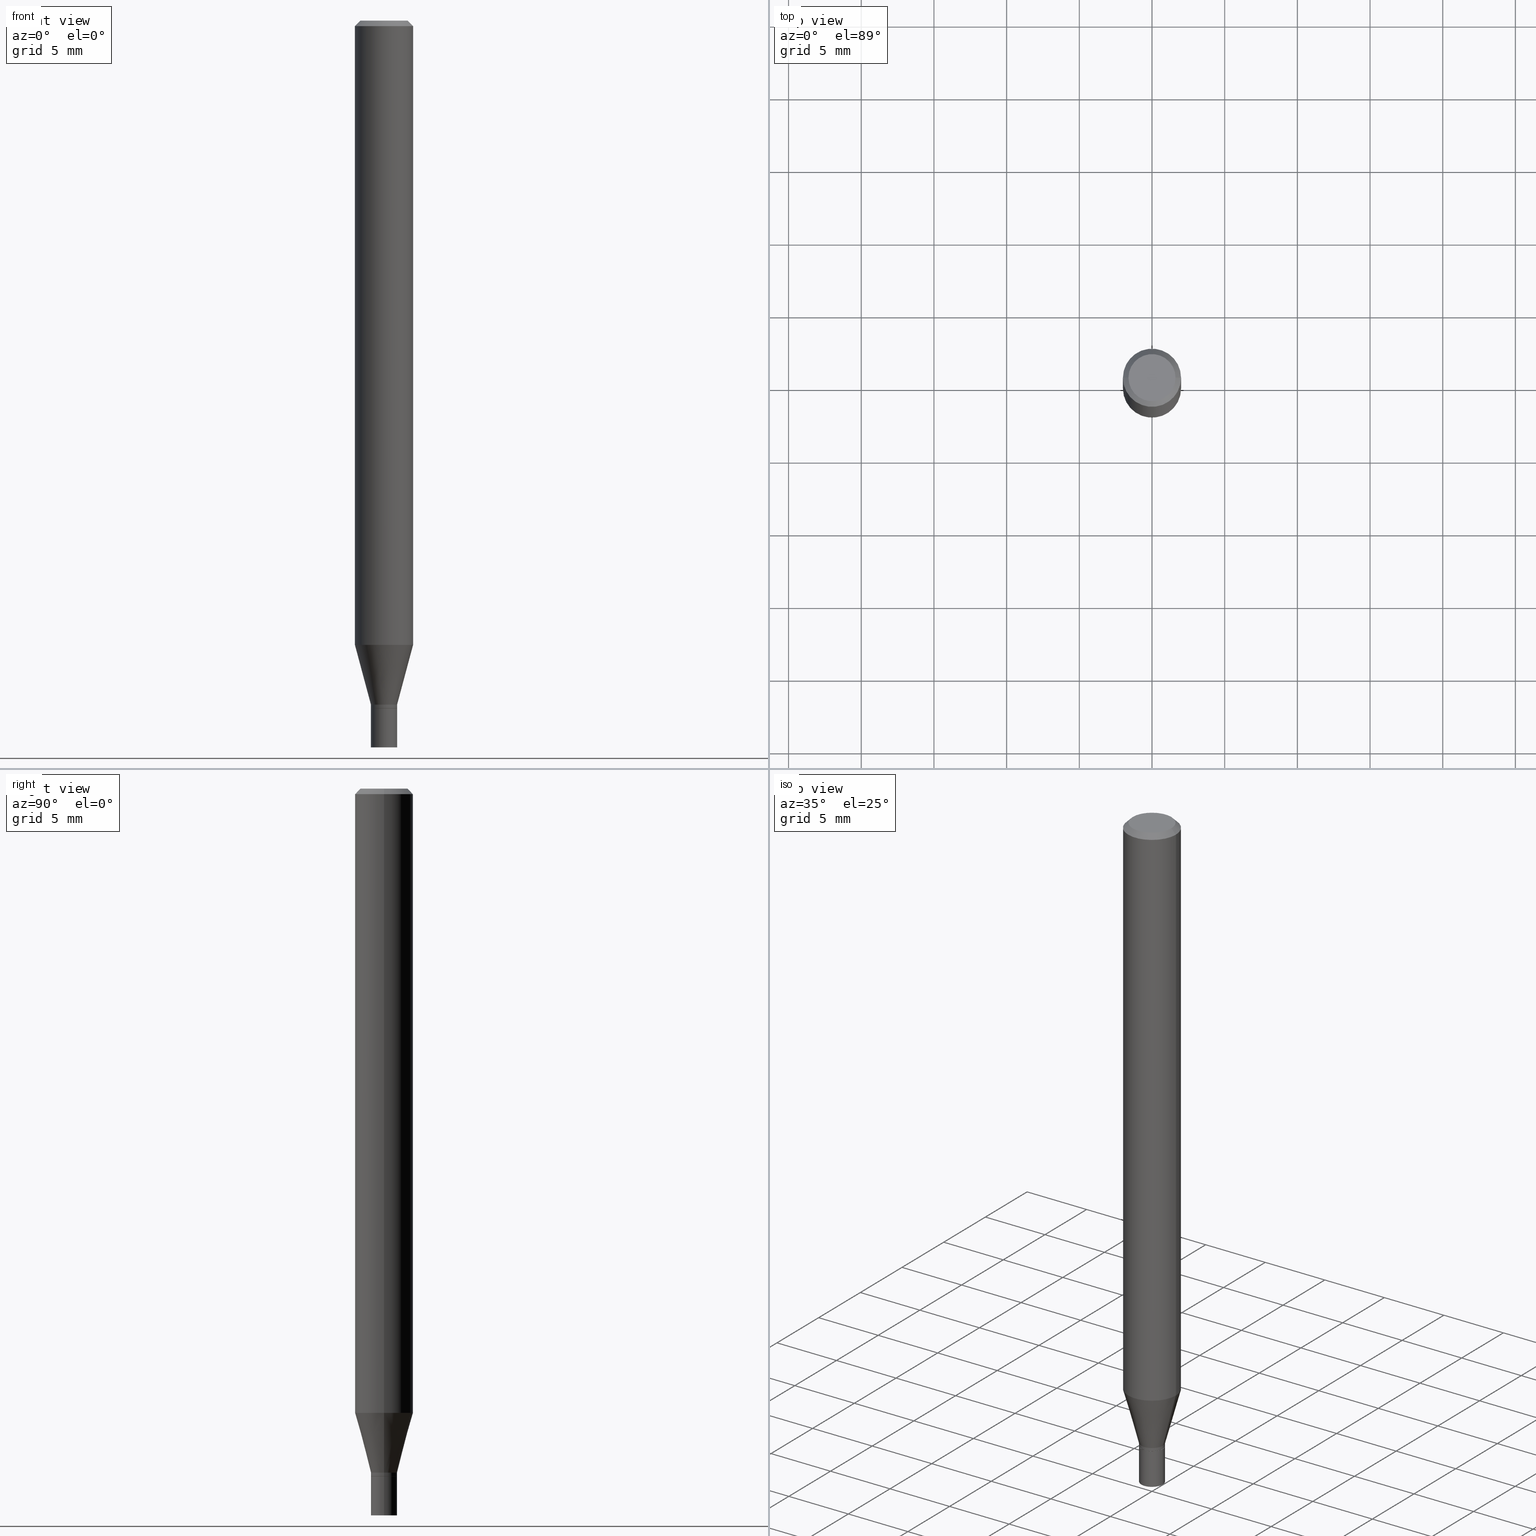
[diagram: canonical four-view strip — front | top / right | iso, engineering-drawing reading convention]
A machine part, canonical four-view strip (front | top / right | iso — engineering-drawing reading convention). The complete STEP part file that produces these views, byte-faithful:
ISO-10303-21;
HEADER;
FILE_DESCRIPTION (( 'STEP AP203' ),
    '1' );
FILE_NAME ('01869.STEP',
    '2024-03-20T02:12:16',
    ( '' ),
    ( '' ),
    'SwSTEP 2.0',
    'SolidWorks 2023',
    '' );
FILE_SCHEMA (( 'CONFIG_CONTROL_DESIGN' ));
ENDSEC;

DATA;
#1 = CARTESIAN_POINT ( 'NONE',  ( -0.03495000000000000190, -6.253501863045551363E-15, -1.862200000000000077 ) ) ;
#2 = APPROVAL ( #449, 'UNSPECIFIED' ) ;
#3 = ORIENTED_EDGE ( 'NONE', *, *, #271, .F. ) ;
#4 = CIRCLE ( 'NONE', #185, 0.07875000000000000056 ) ;
#5 = DIRECTION ( 'NONE',  ( -1.000000000000000000, 6.982962677686265922E-15, -4.876176775795935793E-29 ) ) ;
#6 = EDGE_CURVE ( 'NONE', #56, #96, #73, .T. ) ;
#7 = VERTEX_POINT ( 'NONE', #77 ) ;
#8 = CARTESIAN_POINT ( 'NONE',  ( 3.668203209277705088E-31, -5.237222008264718399E-17, -0.01499999999999999944 ) ) ;
#9 = AXIS2_PLACEMENT_3D ( 'NONE', #306, #205, #17 ) ;
#10 = AXIS2_PLACEMENT_3D ( 'NONE', #381, #208, #296 ) ;
#11 = ORIENTED_EDGE ( 'NONE', *, *, #266, .T. ) ;
#12 = ORIENTED_EDGE ( 'NONE', *, *, #173, .F. ) ;
#13 = LINE ( 'NONE', #157, #377 ) ;
#14 = APPLICATION_PROTOCOL_DEFINITION ( 'international standard', 'config_control_design', 1994, #264 ) ;
#15 = ORIENTED_EDGE ( 'NONE', *, *, #173, .T. ) ;
#16 = EDGE_CURVE ( 'NONE', #361, #343, #229, .T. ) ;
#17 = DIRECTION ( 'NONE',  ( -1.000000000000000000, 6.982962677686265922E-15, -4.876176775795935793E-29 ) ) ;
#18 = CARTESIAN_POINT ( 'NONE',  ( 0.000000000000000000, 0.000000000000000000, 0.000000000000000000 ) ) ;
#19 = LENGTH_MEASURE_WITH_UNIT ( LENGTH_MEASURE( 0.02539999999999999897 ), #89 );
#20 = AXIS2_PLACEMENT_3D ( 'NONE', #8, #119, #403 ) ;
#21 = ADVANCED_FACE ( 'NONE', ( #133 ), #337, .T. ) ;
#22 = MANIFOLD_SOLID_BREP ( 'Body-Move/Copy2[1]', #454 ) ;
#23 = CARTESIAN_POINT ( 'NONE',  ( -0.07875000000000000056, -2.418510444240986285E-15, -0.01499999999999999944 ) ) ;
#24 = ORIENTED_EDGE ( 'NONE', *, *, #107, .F. ) ;
#25 = DIRECTION ( 'NONE',  ( -2.445468806185136597E-29, 3.491481338843145583E-15, 1.000000000000000000 ) ) ;
#26 = AXIS2_PLACEMENT_3D ( 'NONE', #410, #415, #340 ) ;
#27 = PERSON_AND_ORGANIZATION_ROLE ( 'creator' ) ;
#28 = EDGE_CURVE ( 'NONE', #343, #96, #333, .T. ) ;
#29 = CARTESIAN_POINT ( 'NONE',  ( 4.553952010877962015E-29, -6.501836549193706638E-15, -1.862200000000000077 ) ) ;
#30 = DATE_AND_TIME ( #461, #223 ) ;
#31 = ORIENTED_EDGE ( 'NONE', *, *, #364, .F. ) ;
#32 = LINE ( 'NONE', #282, #441 ) ;
#33 = DIRECTION ( 'NONE',  ( -2.445468806185136597E-29, 3.491481338843145583E-15, 1.000000000000000000 ) ) ;
#34 = DIRECTION ( 'NONE',  ( -0.7071067811865656694, 7.493145998870420424E-15, 0.7071067811865294761 ) ) ;
#35 = DIRECTION ( 'NONE',  ( 1.000000000000000000, -6.982962677686266711E-15, 4.876176775795935793E-29 ) ) ;
#36 = DIRECTION ( 'NONE',  ( -2.445468806185136597E-29, 3.491481338843145583E-15, 1.000000000000000000 ) ) ;
#37 = AXIS2_PLACEMENT_3D ( 'NONE', #91, #85, #200 ) ;
#38 = ORIENTED_EDGE ( 'NONE', *, *, #6, .T. ) ;
#39 = AXIS2_PLACEMENT_3D ( 'NONE', #227, #206, #342 ) ;
#40 = ORIENTED_EDGE ( 'NONE', *, *, #349, .T. ) ;
#41 = EDGE_LOOP ( 'NONE', ( #366, #43, #188, #394 ) ) ;
#42 = ORIENTED_EDGE ( 'NONE', *, *, #75, .F. ) ;
#43 = ORIENTED_EDGE ( 'NONE', *, *, #254, .T. ) ;
#44 = ORIENTED_EDGE ( 'NONE', *, *, #189, .F. ) ;
#45 = AXIS2_PLACEMENT_3D ( 'NONE', #435, #317, #402 ) ;
#46 = AXIS2_PLACEMENT_3D ( 'NONE', #249, #95, #368 ) ;
#47 = CARTESIAN_POINT ( 'NONE',  ( -0.06375000000000000111, 4.713499807438225296E-16, -2.315107740929834566E-16 ) ) ;
#48 = EDGE_LOOP ( 'NONE', ( #288, #145, #94, #429 ) ) ;
#49 = CARTESIAN_POINT ( 'NONE',  ( 0.000000000000000000, 0.000000000000000000, 0.000000000000000000 ) ) ;
#50 = APPROVAL ( #121, 'UNSPECIFIED' ) ;
#51 = DIRECTION ( 'NONE',  ( 1.000000000000000000, -6.982962677686254089E-15, 0.000000000000000000 ) ) ;
#52 = CYLINDRICAL_SURFACE ( 'NONE', #290, 0.03544999999999992601 ) ;
#53 = VECTOR ( 'NONE', #90, 39.37007874015748143 ) ;
#54 =( NAMED_UNIT ( * ) SI_UNIT ( $, .STERADIAN. ) SOLID_ANGLE_UNIT ( ) );
#55 = EDGE_CURVE ( 'NONE', #327, #219, #273, .T. ) ;
#56 = VERTEX_POINT ( 'NONE', #197 ) ;
#57 = ORIENTED_EDGE ( 'NONE', *, *, #87, .T. ) ;
#58 = EDGE_CURVE ( 'NONE', #343, #361, #102, .T. ) ;
#59 = FACE_OUTER_BOUND ( 'NONE', #464, .T. ) ;
#60 = PERSON_AND_ORGANIZATION ( #274, #360 ) ;
#61 = PLANE ( 'NONE',  #116 ) ;
#62 = CONICAL_SURFACE ( 'NONE', #319, 0.03544999999999992601, 0.2617993877991502405 ) ;
#63 = EDGE_CURVE ( 'NONE', #330, #219, #240, .T. ) ;
#64 = PERSON_AND_ORGANIZATION_ROLE ( 'creator' ) ;
#65 = CALENDAR_DATE ( 2024, 19, 3 ) ;
#66 = ORIENTED_EDGE ( 'NONE', *, *, #458, .F. ) ;
#67 = ADVANCED_FACE ( 'NONE', ( #59 ), #137, .F. ) ;
#68 = DIRECTION ( 'NONE',  ( 0.7071067811865530128, -7.319954787623274978E-15, -0.7071067811865420216 ) ) ;
#69 = VECTOR ( 'NONE', #262, 39.37007874015748143 ) ;
#70 = DIRECTION ( 'NONE',  ( -2.445468806185136877E-29, 3.491481338843145188E-15, 1.000000000000000000 ) ) ;
#71 = FACE_OUTER_BOUND ( 'NONE', #256, .T. ) ;
#72 = ADVANCED_FACE ( 'NONE', ( #379 ), #169, .T. ) ;
#73 = CIRCLE ( 'NONE', #45, 0.03544999999999992601 ) ;
#74 = AXIS2_PLACEMENT_3D ( 'NONE', #111, #98, #356 ) ;
#75 = EDGE_CURVE ( 'NONE', #363, #186, #284, .T. ) ;
#76 = DIRECTION ( 'NONE',  ( 1.000000000000000000, 0.000000000000000000, 0.000000000000000000 ) ) ;
#77 = CARTESIAN_POINT ( 'NONE',  ( -0.03545000000000000234, -6.435521382526263788E-15, -1.862200000000000077 ) ) ;
#78 = CARTESIAN_POINT ( 'NONE',  ( 0.03545000000000000234, -6.749382576117683733E-15, -1.862200000000000077 ) ) ;
#79 = DIRECTION ( 'NONE',  ( -2.445468806185136597E-29, 3.491481338843145583E-15, 1.000000000000000000 ) ) ;
#80 = DIRECTION ( 'NONE',  ( 1.000000000000000000, -6.982962677686269077E-15, 0.000000000000000000 ) ) ;
#81 = ORIENTED_EDGE ( 'NONE', *, *, #364, .T. ) ;
#82 = DIRECTION ( 'NONE',  ( -2.445468806185136877E-29, 3.491481338843145188E-15, 1.000000000000000000 ) ) ;
#83 = CIRCLE ( 'NONE', #432, 0.03545000000000000234 ) ;
#84 = CIRCLE ( 'NONE', #10, 0.03544999999999992601 ) ;
#85 = DIRECTION ( 'NONE',  ( 2.445468806185136597E-29, -3.491481338843145583E-15, -1.000000000000000000 ) ) ;
#86 = CARTESIAN_POINT ( 'NONE',  ( 4.813905344975441835E-29, -6.872981015512731707E-15, -1.968500000000000139 ) ) ;
#87 = EDGE_CURVE ( 'NONE', #270, #323, #125, .T. ) ;
#88 = CARTESIAN_POINT ( 'NONE',  ( -0.07875000000000000056, 4.975360907851462665E-16, -0.01499999999999999944 ) ) ;
#89 =( LENGTH_UNIT ( ) NAMED_UNIT ( * ) SI_UNIT ( $, .METRE. ) );
#90 = DIRECTION ( 'NONE',  ( -2.445468806185136877E-29, 3.491481338843145188E-15, 1.000000000000000000 ) ) ;
#91 = CARTESIAN_POINT ( 'NONE',  ( 3.668203209277705088E-31, -5.237222008264718399E-17, -0.01499999999999999944 ) ) ;
#92 = COORDINATED_UNIVERSAL_TIME_OFFSET ( 5, 0, .BEHIND. ) ;
#93 = CONICAL_SURFACE ( 'NONE', #104, 0.03495000000000000190, 0.7853981633974739252 ) ;
#94 = ORIENTED_EDGE ( 'NONE', *, *, #123, .F. ) ;
#95 = DIRECTION ( 'NONE',  ( -2.445468806185136597E-29, 3.491481338843145583E-15, 1.000000000000000000 ) ) ;
#96 = VERTEX_POINT ( 'NONE', #406 ) ;
#97 = PERSON_AND_ORGANIZATION ( #274, #360 ) ;
#98 = DIRECTION ( 'NONE',  ( -2.445468806185136597E-29, 3.491481338843145583E-15, 1.000000000000000000 ) ) ;
#99 = CARTESIAN_POINT ( 'NONE',  ( 0.07875000000000000056, -5.926364374071552647E-16, -0.01499999999999999944 ) ) ;
#100 = PERSON_AND_ORGANIZATION ( #274, #360 ) ;
#101 = CC_DESIGN_DATE_AND_TIME_ASSIGNMENT ( #106, #276, ( #391 ) ) ;
#102 = CIRCLE ( 'NONE', #26, 0.03544999999999992601 ) ;
#103 = CARTESIAN_POINT ( 'NONE',  ( -0.03545000000000000234, -6.435521382526263788E-15, -1.968500000000000139 ) ) ;
#104 = AXIS2_PLACEMENT_3D ( 'NONE', #314, #305, #455 ) ;
#105 = CARTESIAN_POINT ( 'NONE',  ( 4.553952010877962015E-29, -6.501836549193706638E-15, -1.862200000000000077 ) ) ;
#106 = DATE_AND_TIME ( #416, #155 ) ;
#107 = EDGE_CURVE ( 'NONE', #270, #251, #83, .T. ) ;
#108 = CYLINDRICAL_SURFACE ( 'NONE', #320, 0.03545000000000000234 ) ;
#109 = DATE_AND_TIME ( #378, #179 ) ;
#110 = ORIENTED_EDGE ( 'NONE', *, *, #55, .F. ) ;
#111 = CARTESIAN_POINT ( 'NONE',  ( 0.000000000000000000, 0.000000000000000000, 0.000000000000000000 ) ) ;
#112 = CIRCLE ( 'NONE', #285, 0.03545000000000000234 ) ;
#113 = ADVANCED_BREP_SHAPE_REPRESENTATION ( '01869', ( #22, #167, #372 ), #428 ) ;
#114 = EDGE_LOOP ( 'NONE', ( #457, #42 ) ) ;
#115 = CC_DESIGN_PERSON_AND_ORGANIZATION_ASSIGNMENT ( #60, #64, ( #336 ) ) ;
#116 = AXIS2_PLACEMENT_3D ( 'NONE', #346, #460, #5 ) ;
#117 = ORIENTED_EDGE ( 'NONE', *, *, #271, .T. ) ;
#118 = CARTESIAN_POINT ( 'NONE',  ( 4.530230963457965142E-29, -6.467969180206926313E-15, -1.852500000000000036 ) ) ;
#119 = DIRECTION ( 'NONE',  ( -2.445468806185136597E-29, 3.491481338843145583E-15, 1.000000000000000000 ) ) ;
#120 = CARTESIAN_POINT ( 'NONE',  ( 4.530230963457965142E-29, -6.467969180206926313E-15, -1.852500000000000036 ) ) ;
#121 = APPROVAL_STATUS ( 'not_yet_approved' ) ;
#122 = EDGE_LOOP ( 'NONE', ( #409, #286, #110, #204 ) ) ;
#123 = EDGE_CURVE ( 'NONE', #258, #330, #144, .T. ) ;
#124 = ORIENTED_EDGE ( 'NONE', *, *, #55, .T. ) ;
#125 = LINE ( 'NONE', #451, #69 ) ;
#126 = DIRECTION ( 'NONE',  ( -2.445468806185136597E-29, 3.491481338843145583E-15, 1.000000000000000000 ) ) ;
#127 = VECTOR ( 'NONE', #325, 39.37007874015748143 ) ;
#128 = DIRECTION ( 'NONE',  ( 1.000000000000000000, -6.982962677686267499E-15, 0.000000000000000000 ) ) ;
#129 = CARTESIAN_POINT ( 'NONE',  ( -0.07875000000000000056, 5.595524044110789003E-16, -3.873661383575737792E-30 ) ) ;
#130 = FACE_OUTER_BOUND ( 'NONE', #272, .T. ) ;
#131 = EDGE_LOOP ( 'NONE', ( #31, #15, #57, #3 ) ) ;
#132 = DIRECTION ( 'NONE',  ( 1.000000000000000000, -6.982962677686265922E-15, 0.000000000000000000 ) ) ;
#133 = FACE_OUTER_BOUND ( 'NONE', #122, .T. ) ;
#134 = VECTOR ( 'NONE', #235, 39.37007874015748143 ) ;
#135 = PERSON_AND_ORGANIZATION ( #274, #360 ) ;
#136 = DIRECTION ( 'NONE',  ( -2.445468806185136597E-29, 3.491481338843145583E-15, 1.000000000000000000 ) ) ;
#137 = PLANE ( 'NONE',  #9 ) ;
#138 = ORIENTED_EDGE ( 'NONE', *, *, #332, .F. ) ;
#139 = APPROVAL_DATE_TIME ( #30, #50 ) ;
#140 = DIRECTION ( 'NONE',  ( 1.000000000000000000, -6.982962677686269077E-15, 0.000000000000000000 ) ) ;
#141 = CC_DESIGN_PERSON_AND_ORGANIZATION_ASSIGNMENT ( #97, #27, ( #391 ) ) ;
#142 = EDGE_CURVE ( 'NONE', #361, #56, #408, .T. ) ;
#143 = SECURITY_CLASSIFICATION_LEVEL ( 'unclassified' ) ;
#144 = CIRCLE ( 'NONE', #359, 0.07875000000000000056 ) ;
#145 = ORIENTED_EDGE ( 'NONE', *, *, #332, .T. ) ;
#146 = LOCAL_TIME ( 22, 12, 16.00000000000000000, #417 ) ;
#147 = PRODUCT_RELATED_PRODUCT_CATEGORY ( 'detail', '', ( #362 ) ) ;
#148 = CARTESIAN_POINT ( 'NONE',  ( 0.03544999999999992601, -6.715515207130904197E-15, -1.852500000000000036 ) ) ;
#149 = AXIS2_PLACEMENT_3D ( 'NONE', #283, #36, #395 ) ;
#150 = ORIENTED_EDGE ( 'NONE', *, *, #458, .T. ) ;
#151 = ADVANCED_FACE ( 'NONE', ( #71 ), #177, .F. ) ;
#152 = EDGE_CURVE ( 'NONE', #255, #327, #393, .T. ) ;
#153 = ORIENTED_EDGE ( 'NONE', *, *, #142, .F. ) ;
#154 = VECTOR ( 'NONE', #171, 39.37007874015748143 ) ;
#155 = LOCAL_TIME ( 22, 12, 16.00000000000000000, #178 ) ;
#156 = EDGE_LOOP ( 'NONE', ( #138, #38, #376, #196 ) ) ;
#157 = CARTESIAN_POINT ( 'NONE',  ( 0.07875000000000000056, -5.499083108677934443E-16, 3.839989210939299016E-30 ) ) ;
#158 = APPROVAL_ROLE ( '' ) ;
#159 = ORIENTED_EDGE ( 'NONE', *, *, #107, .T. ) ;
#160 = CARTESIAN_POINT ( 'NONE',  ( 4.553952010877962015E-29, -6.501836549193706638E-15, -1.862200000000000077 ) ) ;
#161 = DIRECTION ( 'NONE',  ( -2.445468806185136597E-29, 3.491481338843145583E-15, 1.000000000000000000 ) ) ;
#162 = ORIENTED_EDGE ( 'NONE', *, *, #302, .T. ) ;
#163 = ADVANCED_FACE ( 'NONE', ( #217 ), #358, .T. ) ;
#164 = CARTESIAN_POINT ( 'NONE',  ( -0.03544999999999992601, 2.518873998269549902E-16, -1.743762489495360585E-30 ) ) ;
#165 =( CONVERSION_BASED_UNIT ( 'INCH', #19 ) LENGTH_UNIT ( ) NAMED_UNIT ( #384 ) );
#166 = ORIENTED_EDGE ( 'NONE', *, *, #58, .T. ) ;
#167 = MANIFOLD_SOLID_BREP ( 'Body-Move/Copy2[2]', #427 ) ;
#168 = DIRECTION ( 'NONE',  ( 1.000000000000000000, -6.982962677686265922E-15, 4.876176775795935232E-29 ) ) ;
#169 = CONICAL_SURFACE ( 'NONE', #398, 0.07875000000000000056, 0.7853981633974560506 ) ;
#170 = CC_DESIGN_APPROVAL ( #50, ( #391 ) ) ;
#171 = DIRECTION ( 'NONE',  ( 0.2588190451025215166, 1.565188264969620784E-15, 0.9659258262890679791 ) ) ;
#172 = FACE_OUTER_BOUND ( 'NONE', #280, .T. ) ;
#173 = EDGE_CURVE ( 'NONE', #251, #270, #347, .T. ) ;
#174 = CARTESIAN_POINT ( 'NONE',  ( 0.000000000000000000, 0.000000000000000000, 0.000000000000000000 ) ) ;
#175 = CALENDAR_DATE ( 2024, 19, 3 ) ;
#176 = ORIENTED_EDGE ( 'NONE', *, *, #302, .F. ) ;
#177 = PLANE ( 'NONE',  #237 ) ;
#178 = COORDINATED_UNIVERSAL_TIME_OFFSET ( 5, 0, .BEHIND. ) ;
#179 = LOCAL_TIME ( 22, 12, 16.00000000000000000, #92 ) ;
#180 = CARTESIAN_POINT ( 'NONE',  ( -0.03545000000000000234, 2.518873998269555325E-16, -1.743762489495364089E-30 ) ) ;
#181 = PLANE ( 'NONE',  #386 ) ;
#182 = EDGE_LOOP ( 'NONE', ( #176, #400, #124, #44 ) ) ;
#183 = ADVANCED_FACE ( 'NONE', ( #172 ), #61, .F. ) ;
#184 = AXIS2_PLACEMENT_3D ( 'NONE', #120, #79, #80 ) ;
#185 = AXIS2_PLACEMENT_3D ( 'NONE', #228, #126, #194 ) ;
#186 = VERTEX_POINT ( 'NONE', #301 ) ;
#187 = ADVANCED_FACE ( 'NONE', ( #392 ), #62, .T. ) ;
#188 = ORIENTED_EDGE ( 'NONE', *, *, #58, .F. ) ;
#189 = EDGE_CURVE ( 'NONE', #404, #219, #430, .T. ) ;
#190 = EDGE_LOOP ( 'NONE', ( #371, #66, #447, #424 ) ) ;
#191 = LINE ( 'NONE', #295, #211 ) ;
#192 = CIRCLE ( 'NONE', #20, 0.07875000000000000056 ) ;
#193 = EDGE_LOOP ( 'NONE', ( #166, #311, #422, #289 ) ) ;
#194 = DIRECTION ( 'NONE',  ( 1.000000000000000000, -6.982962677686261977E-15, 0.000000000000000000 ) ) ;
#195 = CARTESIAN_POINT ( 'NONE',  ( 5.661523763401571692E-45, -8.083155474867715899E-31, -2.315107740929802519E-16 ) ) ;
#196 = ORIENTED_EDGE ( 'NONE', *, *, #341, .F. ) ;
#197 = CARTESIAN_POINT ( 'NONE',  ( -0.03544999999999992601, -5.780141426595187808E-15, -1.852500000000000036 ) ) ;
#198 = CYLINDRICAL_SURFACE ( 'NONE', #74, 0.03545000000000000234 ) ;
#199 = CARTESIAN_POINT ( 'NONE',  ( 4.135048584488730771E-29, -5.903753477221482700E-15, -1.690902200032267766 ) ) ;
#200 = DIRECTION ( 'NONE',  ( -1.000000000000000000, 6.982962677686265922E-15, 0.000000000000000000 ) ) ;
#201 = ADVANCED_FACE ( 'NONE', ( #130 ), #52, .T. ) ;
#202 = DIRECTION ( 'NONE',  ( -2.445468806185136597E-29, 3.491481338843145583E-15, 1.000000000000000000 ) ) ;
#203 = VECTOR ( 'NONE', #304, 39.37007874015748143 ) ;
#204 = ORIENTED_EDGE ( 'NONE', *, *, #349, .F. ) ;
#205 = DIRECTION ( 'NONE',  ( 2.438088387897960049E-29, -3.491481338843145188E-15, -1.000000000000000000 ) ) ;
#206 = DIRECTION ( 'NONE',  ( -2.445468806185136597E-29, 3.491481338843145583E-15, 1.000000000000000000 ) ) ;
#207 = DIRECTION ( 'NONE',  ( 1.000000000000000000, -6.982962677686254089E-15, 0.000000000000000000 ) ) ;
#208 = DIRECTION ( 'NONE',  ( -2.445468806185136597E-29, 3.491481338843145583E-15, 1.000000000000000000 ) ) ;
#209 = ADVANCED_FACE ( 'NONE', ( #437 ), #261, .T. ) ;
#210 = AXIS2_PLACEMENT_3D ( 'NONE', #315, #243, #382 ) ;
#211 = VECTOR ( 'NONE', #324, 39.37007874015748143 ) ;
#212 = CARTESIAN_POINT ( 'NONE',  ( -0.03495000000000000190, -6.250852635871440951E-15, -1.862200000000000077 ) ) ;
#213 = CARTESIAN_POINT ( 'NONE',  ( 0.06375000000000000111, -5.149965923825456210E-16, -2.315107740929768499E-16 ) ) ;
#214 = DATE_TIME_ROLE ( 'classification_date' ) ;
#215 = ORIENTED_EDGE ( 'NONE', *, *, #75, .T. ) ;
#216 = LINE ( 'NONE', #148, #154 ) ;
#217 = FACE_OUTER_BOUND ( 'NONE', #193, .T. ) ;
#218 = AXIS2_PLACEMENT_3D ( 'NONE', #426, #350, #207 ) ;
#219 = VERTEX_POINT ( 'NONE', #23 ) ;
#220 = DIRECTION ( 'NONE',  ( -2.438088387897960049E-29, 3.491481338843145188E-15, 1.000000000000000000 ) ) ;
#221 = FACE_OUTER_BOUND ( 'NONE', #41, .T. ) ;
#222 = CC_DESIGN_PERSON_AND_ORGANIZATION_ASSIGNMENT ( #135, #241, ( #312 ) ) ;
#223 = LOCAL_TIME ( 22, 12, 16.00000000000000000, #259 ) ;
#224 = CC_DESIGN_DATE_AND_TIME_ASSIGNMENT ( #278, #214, ( #312 ) ) ;
#225 = ORIENTED_EDGE ( 'NONE', *, *, #63, .F. ) ;
#226 = PERSON_AND_ORGANIZATION ( #274, #360 ) ;
#227 = CARTESIAN_POINT ( 'NONE',  ( 4.552729276474869214E-29, -6.500090808524285134E-15, -1.861700000000000355 ) ) ;
#228 = CARTESIAN_POINT ( 'NONE',  ( 4.135048584488730771E-29, -5.903753477221482700E-15, -1.690902200032267766 ) ) ;
#229 = CIRCLE ( 'NONE', #39, 0.03544999999999992601 ) ;
#230 = APPROVAL_PERSON_ORGANIZATION ( #100, #370, #453 ) ;
#231 = CARTESIAN_POINT ( 'NONE',  ( 0.03544999999999992601, -2.475460269239776370E-16, 1.728604667019655587E-30 ) ) ;
#232 = FACE_OUTER_BOUND ( 'NONE', #131, .T. ) ;
#233 = DIRECTION ( 'NONE',  ( -2.445468806185136597E-29, 3.491481338843145583E-15, 1.000000000000000000 ) ) ;
#234 = DIRECTION ( 'NONE',  ( -2.445468806185136597E-29, 3.491481338843145583E-15, 1.000000000000000000 ) ) ;
#235 = DIRECTION ( 'NONE',  ( -2.445468806185136877E-29, 3.491481338843145188E-15, 1.000000000000000000 ) ) ;
#236 = ORIENTED_EDGE ( 'NONE', *, *, #87, .F. ) ;
#237 = AXIS2_PLACEMENT_3D ( 'NONE', #308, #423, #252 ) ;
#238 = CIRCLE ( 'NONE', #46, 0.06375000000000000111 ) ;
#239 = ORIENTED_EDGE ( 'NONE', *, *, #383, .T. ) ;
#240 = LINE ( 'NONE', #129, #203 ) ;
#241 = PERSON_AND_ORGANIZATION_ROLE ( 'classification_officer' ) ;
#242 = DIRECTION ( 'NONE',  ( 1.000000000000000000, -6.982962677686254089E-15, 0.000000000000000000 ) ) ;
#243 = DIRECTION ( 'NONE',  ( -2.445468806185136597E-29, 3.491481338843145583E-15, 1.000000000000000000 ) ) ;
#244 = COORDINATED_UNIVERSAL_TIME_OFFSET ( 5, 0, .BEHIND. ) ;
#245 = CIRCLE ( 'NONE', #218, 0.03545000000000000234 ) ;
#246 = DATE_AND_TIME ( #175, #146 ) ;
#247 = AXIS2_PLACEMENT_3D ( 'NONE', #459, #33, #253 ) ;
#248 = ADVANCED_FACE ( 'NONE', ( #269 ), #181, .F. ) ;
#249 = CARTESIAN_POINT ( 'NONE',  ( 5.661523763401571692E-45, -8.083155474867715899E-31, -2.315107740929802519E-16 ) ) ;
#250 = EDGE_CURVE ( 'NONE', #96, #258, #216, .T. ) ;
#251 = VERTEX_POINT ( 'NONE', #103 ) ;
#252 = DIRECTION ( 'NONE',  ( 1.000000000000000000, -6.982962677686265922E-15, 4.876176775795935793E-29 ) ) ;
#253 = DIRECTION ( 'NONE',  ( 1.000000000000000000, -6.982962677686265922E-15, 4.876176775795935232E-29 ) ) ;
#254 = EDGE_CURVE ( 'NONE', #363, #361, #355, .T. ) ;
#255 = VERTEX_POINT ( 'NONE', #213 ) ;
#256 = EDGE_LOOP ( 'NONE', ( #24, #12 ) ) ;
#257 = DIRECTION ( 'NONE',  ( 0.000000000000000000, 0.000000000000000000, 1.000000000000000000 ) ) ;
#258 = VERTEX_POINT ( 'NONE', #313 ) ;
#259 = COORDINATED_UNIVERSAL_TIME_OFFSET ( 5, 0, .BEHIND. ) ;
#260 = CARTESIAN_POINT ( 'NONE',  ( 4.553952010877962015E-29, -6.501836549193706638E-15, -1.862200000000000077 ) ) ;
#261 = CONICAL_SURFACE ( 'NONE', #184, 0.03544999999999992601, 0.2617993877991502405 ) ;
#262 = DIRECTION ( 'NONE',  ( -2.445468806185136877E-29, 3.491481338843145188E-15, 1.000000000000000000 ) ) ;
#263 = CARTESIAN_POINT ( 'NONE',  ( -0.07875000000000000056, -5.344201072810403898E-15, -1.690902200032267766 ) ) ;
#264 = APPLICATION_CONTEXT ( 'configuration controlled 3d designs of mechanical parts and assemblies' ) ;
#265 = DIRECTION ( 'NONE',  ( 1.000000000000000000, -6.982962677686261977E-15, 0.000000000000000000 ) ) ;
#266 = EDGE_CURVE ( 'NONE', #186, #343, #32, .T. ) ;
#267 = DIRECTION ( 'NONE',  ( 1.000000000000000000, -6.982962677686266711E-15, 4.876176775795935793E-29 ) ) ;
#268 = FACE_OUTER_BOUND ( 'NONE', #293, .T. ) ;
#269 = FACE_OUTER_BOUND ( 'NONE', #114, .T. ) ;
#270 = VERTEX_POINT ( 'NONE', #425 ) ;
#271 = EDGE_CURVE ( 'NONE', #7, #323, #245, .T. ) ;
#272 = EDGE_LOOP ( 'NONE', ( #153, #321, #291, #367 ) ) ;
#273 = CIRCLE ( 'NONE', #465, 0.07875000000000000056 ) ;
#274 = PERSON ( 'UNSPECIFIED', 'UNSPECIFIED', 'UNSPECIFIED', ('UNSPECIFIED'), ('UNSPECIFIED'), ('UNSPECIFIED') ) ;
#275 = DIRECTION ( 'NONE',  ( 1.000000000000000000, -6.982962677686267499E-15, 0.000000000000000000 ) ) ;
#276 = DATE_TIME_ROLE ( 'creation_date' ) ;
#277 = CC_DESIGN_PERSON_AND_ORGANIZATION_ASSIGNMENT ( #310, #463, ( #336 ) ) ;
#278 = DATE_AND_TIME ( #65, #466 ) ;
#279 = AXIS2_PLACEMENT_3D ( 'NONE', #260, #338, #128 ) ;
#280 = EDGE_LOOP ( 'NONE', ( #239, #117 ) ) ;
#281 = DIRECTION ( 'NONE',  ( 0.7071067811865656694, -2.468850131082446387E-15, 0.7071067811865294761 ) ) ;
#282 = CARTESIAN_POINT ( 'NONE',  ( 0.03495000000000000190, -6.745891094778841514E-15, -1.862200000000000077 ) ) ;
#283 = CARTESIAN_POINT ( 'NONE',  ( 0.000000000000000000, 0.000000000000000000, 0.000000000000000000 ) ) ;
#284 = CIRCLE ( 'NONE', #420, 0.03495000000000000190 ) ;
#285 = AXIS2_PLACEMENT_3D ( 'NONE', #105, #136, #242 ) ;
#286 = ORIENTED_EDGE ( 'NONE', *, *, #63, .T. ) ;
#287 = EDGE_CURVE ( 'NONE', #186, #363, #326, .T. ) ;
#288 = ORIENTED_EDGE ( 'NONE', *, *, #397, .T. ) ;
#289 = ORIENTED_EDGE ( 'NONE', *, *, #28, .F. ) ;
#290 = AXIS2_PLACEMENT_3D ( 'NONE', #18, #161, #267 ) ;
#291 = ORIENTED_EDGE ( 'NONE', *, *, #28, .T. ) ;
#292 = APPLICATION_PROTOCOL_DEFINITION ( 'international standard', 'config_control_design', 1994, #373 ) ;
#293 = EDGE_LOOP ( 'NONE', ( #413, #215, #11, #339 ) ) ;
#294 = ADVANCED_FACE ( 'NONE', ( #353 ), #307, .T. ) ;
#295 = CARTESIAN_POINT ( 'NONE',  ( -0.03544999999999992601, -6.216081780379971717E-15, -1.852500000000000036 ) ) ;
#296 = DIRECTION ( 'NONE',  ( 1.000000000000000000, -6.982962677686269077E-15, 0.000000000000000000 ) ) ;
#297 = AXIS2_PLACEMENT_3D ( 'NONE', #29, #344, #385 ) ;
#298 = CC_DESIGN_APPROVAL ( #370, ( #336 ) ) ;
#299 = DIRECTION ( 'NONE',  ( -2.445468806185136597E-29, 3.491481338843145583E-15, 1.000000000000000000 ) ) ;
#300 = DIRECTION ( 'NONE',  ( 1.000000000000000000, -6.982962677686265922E-15, 4.852736867747365646E-29 ) ) ;
#301 = CARTESIAN_POINT ( 'NONE',  ( 0.03495000000000000190, -6.745891094778841514E-15, -1.862200000000000077 ) ) ;
#302 = EDGE_CURVE ( 'NONE', #255, #404, #238, .T. ) ;
#303 = ORIENTED_EDGE ( 'NONE', *, *, #334, .F. ) ;
#304 = DIRECTION ( 'NONE',  ( -2.445468806185136877E-29, 3.491481338843145188E-15, 1.000000000000000000 ) ) ;
#305 = DIRECTION ( 'NONE',  ( -2.445468806185136597E-29, 3.491481338843145583E-15, 1.000000000000000000 ) ) ;
#306 = CARTESIAN_POINT ( 'NONE',  ( 4.451638707024993845E-16, 0.06375000000000000111, -3.383373223977406317E-16 ) ) ;
#307 = CYLINDRICAL_SURFACE ( 'NONE', #247, 0.07875000000000000056 ) ;
#308 = CARTESIAN_POINT ( 'NONE',  ( 4.848906058769445083E-29, -6.822858001242805551E-15, -1.968500000000000139 ) ) ;
#309 = APPROVAL_STATUS ( 'not_yet_approved' ) ;
#310 = PERSON_AND_ORGANIZATION ( #274, #360 ) ;
#311 = ORIENTED_EDGE ( 'NONE', *, *, #142, .T. ) ;
#312 = SECURITY_CLASSIFICATION ( '', '', #143 ) ;
#313 = CARTESIAN_POINT ( 'NONE',  ( 0.07875000000000000056, -6.453661788089276045E-15, -1.690902200032267766 ) ) ;
#314 = CARTESIAN_POINT ( 'NONE',  ( 4.553952010877962015E-29, -6.501836549193706638E-15, -1.862200000000000077 ) ) ;
#315 = CARTESIAN_POINT ( 'NONE',  ( 4.813905344975441835E-29, -6.872981015512731707E-15, -1.968500000000000139 ) ) ;
#316 = PRODUCT_DEFINITION_SHAPE ( 'NONE', 'NONE',  #391 ) ;
#317 = DIRECTION ( 'NONE',  ( -2.445468806185136597E-29, 3.491481338843145583E-15, 1.000000000000000000 ) ) ;
#318 = APPROVAL_DATE_TIME ( #109, #2 ) ;
#319 = AXIS2_PLACEMENT_3D ( 'NONE', #118, #442, #140 ) ;
#320 = AXIS2_PLACEMENT_3D ( 'NONE', #174, #419, #35 ) ;
#321 = ORIENTED_EDGE ( 'NONE', *, *, #16, .T. ) ;
#322 = SHAPE_DEFINITION_REPRESENTATION ( #316, #113 ) ;
#323 = VERTEX_POINT ( 'NONE', #78 ) ;
#324 = DIRECTION ( 'NONE',  ( -0.2588190451025215166, 5.211531920934551042E-15, 0.9659258262890679791 ) ) ;
#325 = DIRECTION ( 'NONE',  ( -0.7071067811865530128, 2.468850131082314253E-15, -0.7071067811865420216 ) ) ;
#326 = CIRCLE ( 'NONE', #297, 0.03495000000000000190 ) ;
#327 = VERTEX_POINT ( 'NONE', #436 ) ;
#328 = CARTESIAN_POINT ( 'NONE',  ( 0.03544999999999992601, -6.747636835448263018E-15, -1.861700000000000355 ) ) ;
#329 = CARTESIAN_POINT ( 'NONE',  ( 0.000000000000000000, 0.000000000000000000, 0.000000000000000000 ) ) ;
#330 = VERTEX_POINT ( 'NONE', #263 ) ;
#331 = CARTESIAN_POINT ( 'NONE',  ( 3.668203209277705088E-31, -5.237222008264718399E-17, -0.01499999999999999944 ) ) ;
#332 = EDGE_CURVE ( 'NONE', #56, #330, #191, .T. ) ;
#333 = LINE ( 'NONE', #231, #134 ) ;
#334 = EDGE_CURVE ( 'NONE', #219, #327, #192, .T. ) ;
#335 = AXIS2_PLACEMENT_3D ( 'NONE', #49, #299, #168 ) ;
#336 = PRODUCT_DEFINITION_FORMATION_WITH_SPECIFIED_SOURCE ( 'ANY', '', #362, .NOT_KNOWN. ) ;
#337 = CYLINDRICAL_SURFACE ( 'NONE', #335, 0.07875000000000000056 ) ;
#338 = DIRECTION ( 'NONE',  ( -2.445468806185136597E-29, 3.491481338843145583E-15, 1.000000000000000000 ) ) ;
#339 = ORIENTED_EDGE ( 'NONE', *, *, #16, .F. ) ;
#340 = DIRECTION ( 'NONE',  ( 1.000000000000000000, -6.982962677686269077E-15, 0.000000000000000000 ) ) ;
#341 = EDGE_CURVE ( 'NONE', #330, #258, #4, .T. ) ;
#342 = DIRECTION ( 'NONE',  ( 1.000000000000000000, -6.982962677686269077E-15, 0.000000000000000000 ) ) ;
#343 = VERTEX_POINT ( 'NONE', #328 ) ;
#344 = DIRECTION ( 'NONE',  ( -2.445468806185136597E-29, 3.491481338843145583E-15, 1.000000000000000000 ) ) ;
#345 = CARTESIAN_POINT ( 'NONE',  ( -0.03544999999999992601, -6.248203408697330539E-15, -1.861700000000000355 ) ) ;
#346 = CARTESIAN_POINT ( 'NONE',  ( 2.475460269240236375E-16, 0.03544999999999350060, -1.862200000000000077 ) ) ;
#347 = CIRCLE ( 'NONE', #210, 0.03545000000000000234 ) ;
#348 = CONICAL_SURFACE ( 'NONE', #279, 0.03495000000000000190, 0.7853981633974739252 ) ;
#349 = EDGE_CURVE ( 'NONE', #258, #327, #13, .T. ) ;
#350 = DIRECTION ( 'NONE',  ( -2.445468806185136597E-29, 3.491481338843145583E-15, 1.000000000000000000 ) ) ;
#351 = LINE ( 'NONE', #180, #421 ) ;
#352 = ADVANCED_FACE ( 'NONE', ( #232 ), #198, .T. ) ;
#353 = FACE_OUTER_BOUND ( 'NONE', #450, .T. ) ;
#354 = PERSON_AND_ORGANIZATION ( #274, #360 ) ;
#355 = LINE ( 'NONE', #1, #412 ) ;
#356 = DIRECTION ( 'NONE',  ( 1.000000000000000000, -6.982962677686266711E-15, 4.876176775795935793E-29 ) ) ;
#357 = ADVANCED_FACE ( 'NONE', ( #462 ), #108, .T. ) ;
#358 = CYLINDRICAL_SURFACE ( 'NONE', #149, 0.03544999999999992601 ) ;
#359 = AXIS2_PLACEMENT_3D ( 'NONE', #199, #202, #265 ) ;
#360 = ORGANIZATION ( 'UNSPECIFIED', 'UNSPECIFIED', '' ) ;
#361 = VERTEX_POINT ( 'NONE', #345 ) ;
#362 = PRODUCT ( '01869', '01869', '', ( #446 ) ) ;
#363 = VERTEX_POINT ( 'NONE', #212 ) ;
#364 = EDGE_CURVE ( 'NONE', #251, #7, #351, .T. ) ;
#365 = CONICAL_SURFACE ( 'NONE', #37, 0.07875000000000000056, 0.7853981633974560506 ) ;
#366 = ORIENTED_EDGE ( 'NONE', *, *, #287, .T. ) ;
#367 = ORIENTED_EDGE ( 'NONE', *, *, #6, .F. ) ;
#368 = DIRECTION ( 'NONE',  ( 1.000000000000000000, -6.982962677686265922E-15, 4.852736867747365646E-29 ) ) ;
#369 = PERSON_AND_ORGANIZATION_ROLE ( 'design_owner' ) ;
#370 = APPROVAL ( #309, 'UNSPECIFIED' ) ;
#371 = ORIENTED_EDGE ( 'NONE', *, *, #152, .F. ) ;
#372 = AXIS2_PLACEMENT_3D ( 'NONE', #329, #257, #76 ) ;
#373 = APPLICATION_CONTEXT ( 'configuration controlled 3d designs of mechanical parts and assemblies' ) ;
#374 = DIRECTION ( 'NONE',  ( -2.445468806185136597E-29, 3.491481338843145583E-15, 1.000000000000000000 ) ) ;
#375 = ADVANCED_FACE ( 'NONE', ( #221 ), #93, .T. ) ;
#376 = ORIENTED_EDGE ( 'NONE', *, *, #250, .T. ) ;
#377 = VECTOR ( 'NONE', #82, 39.37007874015748143 ) ;
#378 = CALENDAR_DATE ( 2024, 19, 3 ) ;
#379 = FACE_OUTER_BOUND ( 'NONE', #182, .T. ) ;
#380 = CARTESIAN_POINT ( 'NONE',  ( 4.553952010877962015E-29, -6.501836549193706638E-15, -1.862200000000000077 ) ) ;
#381 = CARTESIAN_POINT ( 'NONE',  ( 4.530230963457965142E-29, -6.467969180206926313E-15, -1.852500000000000036 ) ) ;
#382 = DIRECTION ( 'NONE',  ( 1.000000000000000000, -6.982962677686254089E-15, 0.000000000000000000 ) ) ;
#383 = EDGE_CURVE ( 'NONE', #323, #7, #112, .T. ) ;
#384 = DIMENSIONAL_EXPONENTS ( 1.000000000000000000, 0.000000000000000000, 0.000000000000000000, 0.000000000000000000, 0.000000000000000000, 0.000000000000000000, 0.000000000000000000 ) ;
#385 = DIRECTION ( 'NONE',  ( 1.000000000000000000, -6.982962677686267499E-15, 0.000000000000000000 ) ) ;
#386 = AXIS2_PLACEMENT_3D ( 'NONE', #380, #220, #418 ) ;
#387 = CIRCLE ( 'NONE', #443, 0.06375000000000000111 ) ;
#388 = UNCERTAINTY_MEASURE_WITH_UNIT (LENGTH_MEASURE( 1.000000000000000082E-05 ), #165, 'distance_accuracy_value', 'NONE');
#389 = APPROVAL_DATE_TIME ( #246, #370 ) ;
#390 = EDGE_LOOP ( 'NONE', ( #159, #81, #439, #236 ) ) ;
#391 = PRODUCT_DEFINITION ( 'UNKNOWN', '', #336, #452 ) ;
#392 = FACE_OUTER_BOUND ( 'NONE', #156, .T. ) ;
#393 = LINE ( 'NONE', #99, #396 ) ;
#394 = ORIENTED_EDGE ( 'NONE', *, *, #266, .F. ) ;
#395 = DIRECTION ( 'NONE',  ( 1.000000000000000000, -6.982962677686266711E-15, 4.876176775795935793E-29 ) ) ;
#396 = VECTOR ( 'NONE', #68, 39.37007874015748143 ) ;
#397 = EDGE_CURVE ( 'NONE', #96, #56, #84, .T. ) ;
#398 = AXIS2_PLACEMENT_3D ( 'NONE', #331, #445, #456 ) ;
#399 = APPROVAL_PERSON_ORGANIZATION ( #354, #2, #411 ) ;
#400 = ORIENTED_EDGE ( 'NONE', *, *, #152, .T. ) ;
#401 = ADVANCED_FACE ( 'NONE', ( #440 ), #365, .T. ) ;
#402 = DIRECTION ( 'NONE',  ( 1.000000000000000000, -6.982962677686269077E-15, 0.000000000000000000 ) ) ;
#403 = DIRECTION ( 'NONE',  ( 1.000000000000000000, -6.982962677686265922E-15, 0.000000000000000000 ) ) ;
#404 = VERTEX_POINT ( 'NONE', #47 ) ;
#405 = APPROVAL_PERSON_ORGANIZATION ( #438, #50, #158 ) ;
#406 = CARTESIAN_POINT ( 'NONE',  ( 0.03544999999999992601, -6.715515207130904197E-15, -1.852500000000000036 ) ) ;
#407 =( NAMED_UNIT ( * ) PLANE_ANGLE_UNIT ( ) SI_UNIT ( $, .RADIAN. ) );
#408 = LINE ( 'NONE', #164, #53 ) ;
#409 = ORIENTED_EDGE ( 'NONE', *, *, #123, .T. ) ;
#410 = CARTESIAN_POINT ( 'NONE',  ( 4.552729276474869214E-29, -6.500090808524285134E-15, -1.861700000000000355 ) ) ;
#411 = APPROVAL_ROLE ( '' ) ;
#412 = VECTOR ( 'NONE', #34, 39.37007874015748143 ) ;
#413 = ORIENTED_EDGE ( 'NONE', *, *, #254, .F. ) ;
#414 = CC_DESIGN_SECURITY_CLASSIFICATION ( #312, ( #336 ) ) ;
#415 = DIRECTION ( 'NONE',  ( -2.445468806185136597E-29, 3.491481338843145583E-15, 1.000000000000000000 ) ) ;
#416 = CALENDAR_DATE ( 2024, 19, 3 ) ;
#417 = COORDINATED_UNIVERSAL_TIME_OFFSET ( 5, 0, .BEHIND. ) ;
#418 = DIRECTION ( 'NONE',  ( 1.000000000000000000, -6.982962677686265922E-15, 4.876176775795935793E-29 ) ) ;
#419 = DIRECTION ( 'NONE',  ( -2.445468806185136597E-29, 3.491481338843145583E-15, 1.000000000000000000 ) ) ;
#420 = AXIS2_PLACEMENT_3D ( 'NONE', #160, #25, #275 ) ;
#421 = VECTOR ( 'NONE', #70, 39.37007874015748143 ) ;
#422 = ORIENTED_EDGE ( 'NONE', *, *, #397, .F. ) ;
#423 = DIRECTION ( 'NONE',  ( -2.438088387897960049E-29, 3.491481338843145188E-15, 1.000000000000000000 ) ) ;
#424 = ORIENTED_EDGE ( 'NONE', *, *, #334, .T. ) ;
#425 = CARTESIAN_POINT ( 'NONE',  ( 0.03545000000000000234, -7.120527042436709591E-15, -1.968500000000000139 ) ) ;
#426 = CARTESIAN_POINT ( 'NONE',  ( 4.553952010877962015E-29, -6.501836549193706638E-15, -1.862200000000000077 ) ) ;
#427 = CLOSED_SHELL ( 'NONE', ( #163, #375, #72, #21, #209, #187, #294, #401, #67, #248, #433, #201 ) ) ;
#428 =( GEOMETRIC_REPRESENTATION_CONTEXT ( 3 ) GLOBAL_UNCERTAINTY_ASSIGNED_CONTEXT ( ( #388 ) ) GLOBAL_UNIT_ASSIGNED_CONTEXT ( ( #165, #407, #54 ) ) REPRESENTATION_CONTEXT ( 'NONE', 'WORKASPACE' ) );
#429 = ORIENTED_EDGE ( 'NONE', *, *, #250, .F. ) ;
#430 = LINE ( 'NONE', #88, #127 ) ;
#431 = ORIENTED_EDGE ( 'NONE', *, *, #341, .T. ) ;
#432 = AXIS2_PLACEMENT_3D ( 'NONE', #86, #234, #51 ) ;
#433 = ADVANCED_FACE ( 'NONE', ( #268 ), #348, .T. ) ;
#434 = CC_DESIGN_APPROVAL ( #2, ( #312 ) ) ;
#435 = CARTESIAN_POINT ( 'NONE',  ( 4.530230963457965142E-29, -6.467969180206926313E-15, -1.852500000000000036 ) ) ;
#436 = CARTESIAN_POINT ( 'NONE',  ( 0.07875000000000000056, -6.022805309504406221E-16, -0.01499999999999999944 ) ) ;
#437 = FACE_OUTER_BOUND ( 'NONE', #48, .T. ) ;
#438 = PERSON_AND_ORGANIZATION ( #274, #360 ) ;
#439 = ORIENTED_EDGE ( 'NONE', *, *, #383, .F. ) ;
#440 = FACE_OUTER_BOUND ( 'NONE', #190, .T. ) ;
#441 = VECTOR ( 'NONE', #281, 39.37007874015748143 ) ;
#442 = DIRECTION ( 'NONE',  ( -2.445468806185136597E-29, 3.491481338843145583E-15, 1.000000000000000000 ) ) ;
#443 = AXIS2_PLACEMENT_3D ( 'NONE', #195, #233, #300 ) ;
#444 = CC_DESIGN_PERSON_AND_ORGANIZATION_ASSIGNMENT ( #226, #369, ( #362 ) ) ;
#445 = DIRECTION ( 'NONE',  ( 2.445468806185136597E-29, -3.491481338843145583E-15, -1.000000000000000000 ) ) ;
#446 = MECHANICAL_CONTEXT ( 'NONE', #264, 'mechanical' ) ;
#447 = ORIENTED_EDGE ( 'NONE', *, *, #189, .T. ) ;
#448 = CARTESIAN_POINT ( 'NONE',  ( 3.668203209277705088E-31, -5.237222008264718399E-17, -0.01499999999999999944 ) ) ;
#449 = APPROVAL_STATUS ( 'not_yet_approved' ) ;
#450 = EDGE_LOOP ( 'NONE', ( #225, #431, #40, #303 ) ) ;
#451 = CARTESIAN_POINT ( 'NONE',  ( 0.03545000000000000234, -2.475460269239781793E-16, 1.728604667019659440E-30 ) ) ;
#452 = DESIGN_CONTEXT ( 'detailed design', #373, 'design' ) ;
#453 = APPROVAL_ROLE ( '' ) ;
#454 = CLOSED_SHELL ( 'NONE', ( #357, #151, #352, #183 ) ) ;
#455 = DIRECTION ( 'NONE',  ( 1.000000000000000000, -6.982962677686267499E-15, 0.000000000000000000 ) ) ;
#456 = DIRECTION ( 'NONE',  ( -1.000000000000000000, 6.982962677686265922E-15, 0.000000000000000000 ) ) ;
#457 = ORIENTED_EDGE ( 'NONE', *, *, #287, .F. ) ;
#458 = EDGE_CURVE ( 'NONE', #404, #255, #387, .T. ) ;
#459 = CARTESIAN_POINT ( 'NONE',  ( 0.000000000000000000, 0.000000000000000000, 0.000000000000000000 ) ) ;
#460 = DIRECTION ( 'NONE',  ( 2.438088387897960049E-29, -3.491481338843145188E-15, -1.000000000000000000 ) ) ;
#461 = CALENDAR_DATE ( 2024, 19, 3 ) ;
#462 = FACE_OUTER_BOUND ( 'NONE', #390, .T. ) ;
#463 = PERSON_AND_ORGANIZATION_ROLE ( 'design_supplier' ) ;
#464 = EDGE_LOOP ( 'NONE', ( #150, #162 ) ) ;
#465 = AXIS2_PLACEMENT_3D ( 'NONE', #448, #374, #132 ) ;
#466 = LOCAL_TIME ( 22, 12, 16.00000000000000000, #244 ) ;
ENDSEC;
END-ISO-10303-21;
